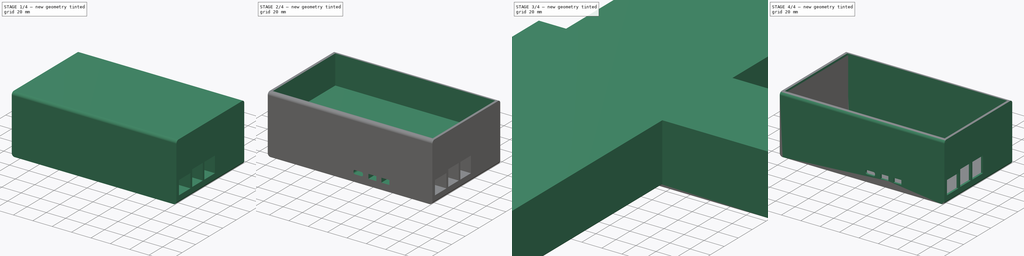
[diagram: build sequence overview — one tinted view per stage of 4, left to right]
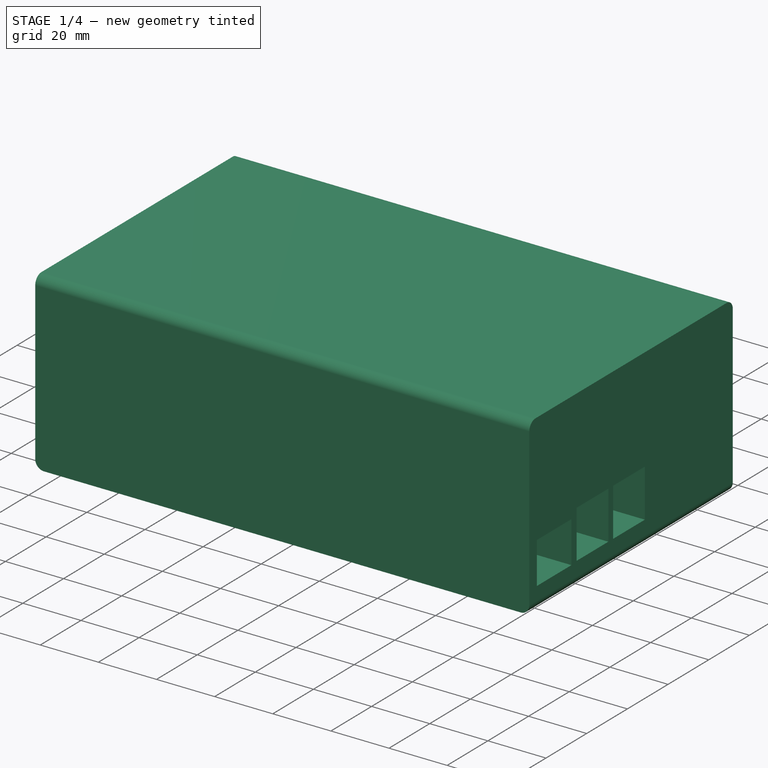
[diagram: stage 1 of 4 — iso view after this stage's code; geometry added in this stage tinted green]
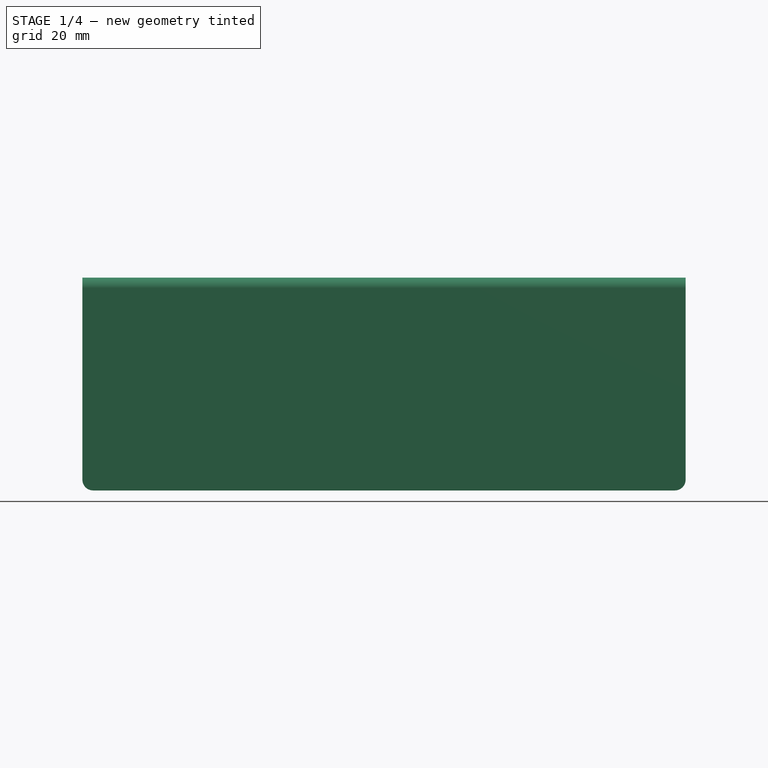
[diagram: stage 1 of 4 — front view after this stage's code; geometry added in this stage tinted green]
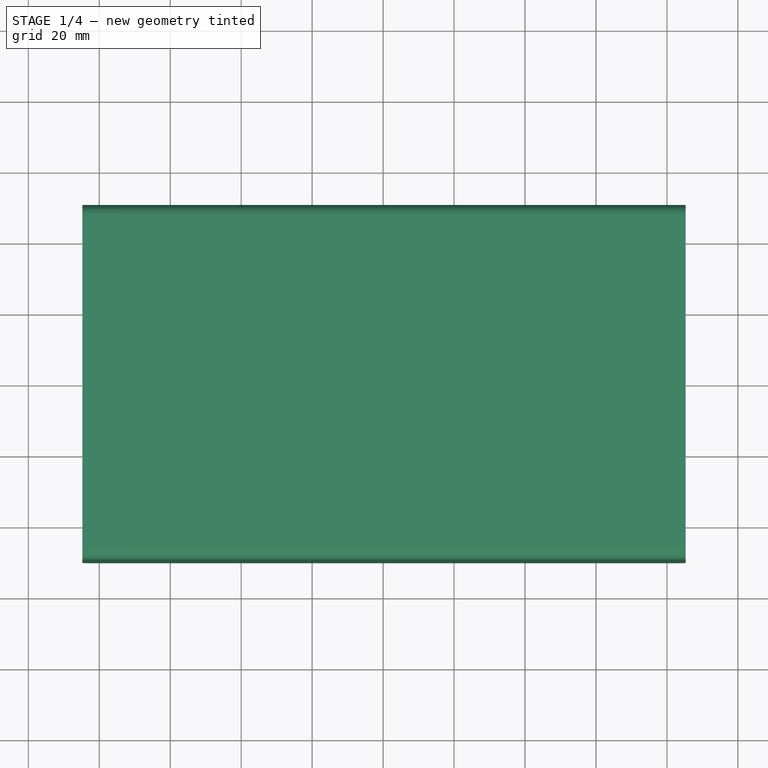
[diagram: stage 1 of 4 — top view after this stage's code; geometry added in this stage tinted green]
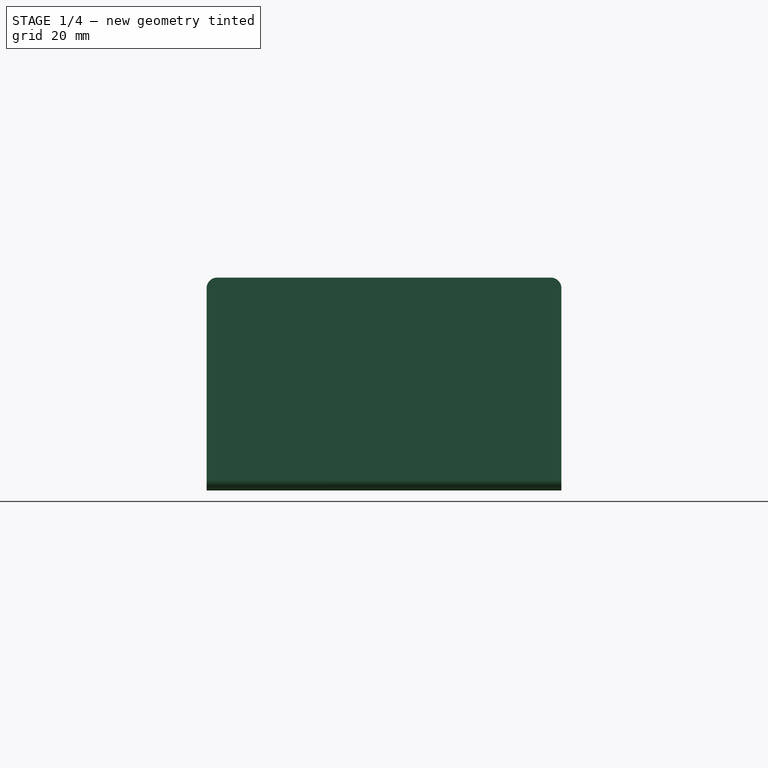
[diagram: stage 1 of 4 — right view after this stage's code; geometry added in this stage tinted green]
FCSTD DOCUMENT  (FreeCAD 0.20R29177 (Git))
Label: Enclosure
License: All rights reserved
LicenseURL: http://en.wikipedia.org/wiki/All_rights_reserved
objects: Part::Feature×18, PartDesign::CoordinateSystem×12, Sketcher::SketchObject×8, PartDesign::SubShapeBinder×6, Part::FeaturePython×6, PartDesign::Pad×4, PartDesign::Pocket×4, App::Link×4, App::DocumentObjectGroup×3, App::Part×3, PartDesign::Body×3, Part::Cut×2, Spreadsheet::Sheet×2, App::FeaturePython×1, PartDesign::Fillet×1
note: 73 computed .brp shape members not serialized (recipe doc carries the construction recipe); baked Part::Feature solids carry a one-line shape summary decoded from their .brp
EXTERNAL_REF file=Top Controls.FCStd obj=Model
EXTERNAL_REF file=../../../.cache/FreeCAD/Cache/FreeCAD_Doc_758b08ec-d01d-4f45-8eb1-2040114cdfba_da39a3_40904 obj=Assembly
EXTERNAL_REF file=Board Standoff.FCStd obj=Assembly
EXTERNAL_REF file=../../../.cache/FreeCAD/Cache/FreeCAD_Doc_88114cf2-53f4-4d60-b915-d9c329f9190e_da39a3_40904 obj=Assembly
EXTERNAL_REF file=../../../.cache/FreeCAD/Cache/FreeCAD_Doc_bedd29ec-8f2d-44d3-9989-91939fc17e47_da39a3_40904 obj=Assembly
EXTERNAL_REF file=../../../.cache/FreeCAD/Cache/FreeCAD_Doc_d5a660e5-ffb9-4f67-9b30-70257670cdda_da39a3_40904 obj=Assembly
EXTERNAL_REF file=../../../.cache/FreeCAD/Cache/FreeCAD_Doc_c0c36c2c-b7f5-4d59-8aca-841648cfa9bd_da39a3_40904 obj=Assembly
EXTERNAL_REF file=../../../.cache/FreeCAD/Cache/FreeCAD_Doc_8f2ab52f-2f3f-4678-b50d-5c2d0dba2e65_da39a3_40904 obj=Assembly
EXTERNAL_REF file=Nut Anchor.FCStd obj=LCS_0
EXTERNAL_REF file=Nut Anchor.FCStd obj=Body

FEATURE [App::DocumentObjectGroup] Parts
FEATURE [PartDesign::CoordinateSystem] LCS_Origin
  AttacherType = Attacher::AttachEngine3D
  MapMode = 2
  Support = -> [X_Axis]
FEATURE [App::DocumentObjectGroup] Constraints
FEATURE [App::FeaturePython] Variables  # WARN: FeaturePython — macro-defined, semantics opaque (R4)
  Type = App::PropertyContainer
  height = 60
  length = 170
  thickness = 2
  width = 100
FEATURE [PartDesign::CoordinateSystem] LCS_0
  AttacherType = Attacher::AttachEngine3D
  MapMode = 2
  Support = -> [X_Axis001]
FEATURE [Part::Feature] Part__Feature  label="PCB_for REF 060923"
  Placement = pos=(0,0,0) rot=(0,1,0;3.14159rad)
  shape: bbox 85 x 5.1 x 56 mm, 198 faces, 28 solids (baked)
FEATURE [Part::Feature] Part__Feature001  label="GPIO Header for REF"
  Placement = pos=(-10,1.5,-24.5) rot=(0,0,1;0rad)
  shape: bbox 50.8 x 10.4 x 5 mm, 250 faces (baked)
FEATURE [Part::Feature] Part__Feature002  label="Micro HDMI for REF"
  Placement = pos=(-16.7047,1.65,21.1346) rot=(-1,0,0;1.5708rad)
  shape: bbox 7.2 x 3.6 x 8.529 mm, 62 faces (baked)
FEATURE [Part::Feature] Part__Feature003  label="Micro HDMI for REF001"
  Placement = pos=(-3.30473,1.65,21.1346) rot=(-1,0,0;1.5708rad)
  shape: bbox 7.2 x 3.6 x 8.529 mm, 62 faces (baked)
FEATURE [Part::Feature] Part__Feature004  label="SD CARD for REF"
  Placement = pos=(0.611344,14.58,0.08) rot=(0,-1,0;1.5708rad)
  shape: bbox 15.43 x 1.632 x 11.98 mm, 492 faces, 2 solids (baked)
FEATURE [Part::Feature] Part__Feature005  label="USB-C for REF"
  Placement = pos=(-31.3,3.22,27.3) rot=(0,0,1;3.14159rad)
  shape: bbox 8.74 x 4.86 x 7.3 mm, 235 faces (baked)
FEATURE [Part::Feature] Part__Feature006  label="RJ45 for REF"
  Placement = pos=(34.875,2.1,17.8) rot=(-1,0,0;1.5708rad)
  shape: bbox 21.25 x 13.3 x 16 mm, 15 faces (baked)
FEATURE [Part::Feature] Part__Feature007  label="USB for REF"
  Placement = pos=(0.896344,15,-0.05) rot=(0,-1,0;1.5708rad)
  shape: bbox 17.57 x 19.81 x 15.8 mm, 610 faces (baked)
FEATURE [Part::Feature] Part__Feature008  label="USB for REF001"
  Placement = pos=(0.896344,15,-18) rot=(0,-1,0;1.5708rad)
  shape: bbox 17.57 x 19.81 x 15.8 mm, 610 faces (baked)
FEATURE [Part::Feature] Part__Feature009  label="PCIe for REF"
  Placement = pos=(-39.5,3.575,-2.01015) rot=(0.57735,0.57735,0.57735;4.18879rad)
  shape: bbox 3.4 x 4.1 x 10.5 mm, 308 faces (baked)
FEATURE [Part::Feature] Part__Feature010  label="CAM-DISP for REF"
  Placement = pos=(5.95,1.5,19.55) rot=(0,-1,0;1.5708rad)
  shape: bbox 2.95 x 4.1 x 15.5 mm, 10 faces (baked)
FEATURE [Part::Feature] Part__Feature011  label="CAM-DISP for REF001"
  Placement = pos=(12.15,1.5,19.55) rot=(0,-1,0;1.5708rad)
  shape: bbox 2.95 x 4.1 x 15.5 mm, 10 faces (baked)
FEATURE [Part::Feature] Part__Feature012  label="LED for REF"
  Placement = pos=(-40.87,2,14.7) rot=(0.57735,-0.57735,0.57735;2.0944rad)
  shape: bbox 1.48 x 1 x 3.2 mm, 12 faces (baked)
FEATURE [Part::Feature] Part__Feature013  label="BAT Header for REF"
  Placement = pos=(-23.5,1.5,23.25) rot=(0,0,1;0rad)
  shape: bbox 4 x 4.4 x 2.9 mm, 6 faces (baked)
FEATURE [Part::Feature] Part__Feature014  label="PoE Header for REF"
  Placement = pos=(19,1.5,18.5) rot=(0,0,1;0rad)
  shape: bbox 5 x 8.5 x 5 mm, 18 faces (baked)
FEATURE [Part::Feature] Part__Feature015  label="FAN Header for REF"
  Placement = pos=(24.25,1.5,-24) rot=(0,-1,0;1.5708rad)
  shape: bbox 3 x 4.45 x 6 mm, 6 faces (baked)
FEATURE [Part::Feature] Part__Feature016  label="SWITCH for REF"
  Placement = pos=(-40.825,3.15,9.6) rot=(0,-1,0;1.5708rad)
  shape: bbox 3.4 x 3.3 x 4.5 mm, 14 faces, 2 solids (baked)
FEATURE [Part::Feature] Part__Feature017  label="UART for REF"
  Placement = pos=(-10.15,1.5,24.1) rot=(0,0,1;0rad)
  shape: bbox 5.3 x 4.4 x 3.2 mm, 6 faces (baked)
FEATURE [App::Part] RP_004882_DD___Pi_5_Mechanical_Reference_3D_model_Iss1  label="RP-004882-DD - Pi 5 Mechanical Reference 3D model Iss1"
  Group = -> [Part__Feature,Part__Feature001,Part__Feature002,Part__Feature003,Part__Feature004,Part__Feature005,Part__Feature006,Part__Feature007,Part__Feature008,Part__Feature009,Part__Feature010,Part__Feature011,Part__Feature012,Part__Feature013,Part__Feature014,Part__Feature015,Part__Feature016,Part__Feature017]
  Origin = -> Origin002
  Placement = pos=(0,0,6) rot=(1,0,0;1.5708rad)
FEATURE [PartDesign::SubShapeBinder] Binder  label="Main board"
  BindCopyOnChange = 0
  BindMode = 0
  ClaimChildren = false
  Context = -> Model [Case.Body.Binder.]
  Fuse = false
  MakeFace = true
  OffsetFill = false
  OffsetIntersection = false
  OffsetJoinType = 0
  OffsetOpenResult = false
  PartialLoad = false
  Relative = true
  Support = -> [RP_004882_DD___Pi_5_Mechanical_Reference_3D_model_Iss1[Part__Feature.]]
  _Version = 2
FEATURE [Sketcher::SketchObject] Sketch
  FullyConstrained = true
  MapMode = 5
  Support = -> [XY_Plane003]
  expr: Constraints[11] = Variables.width
  expr: Constraints[8] = Variables.length
  sketch-geometry (4):
    g0: LineSegment StartX=-124.75 StartY=70 StartZ=0 EndX=45.25 EndY=70 EndZ=0
    g1: LineSegment StartX=45.25 StartY=70 StartZ=0 EndX=45.25 EndY=-30 EndZ=0
    g2: LineSegment StartX=45.25 StartY=-30 StartZ=0 EndX=-124.75 EndY=-30 EndZ=0
    g3: LineSegment StartX=-124.75 StartY=-30 StartZ=0 EndX=-124.75 EndY=70 EndZ=0
  constraints (12):
    c: Coincident(g0,g1)
    c: Coincident(g1,g2)
    c: Coincident(g2,g3)
    c: Coincident(g3,g0)
    c: Horizontal(g0)
    c: Horizontal(g2)
    c: Vertical(g1)
    c: Vertical(g3)
    c: DistanceX(g0,g0) = 170
    c: DistanceY(g1,g-1) = 30
    c: DistanceX(g-1,g1) = 45.25
    c: DistanceY(g1,g0) = 100
FEATURE [PartDesign::Pad] Pad  label="Outer Case"
  Direction = (0,0,1)
  Length = 60
  Length2 = 10
  Profile = -> Sketch
  ReferenceAxis = -> Sketch [N_Axis]
  Type = 0
  expr: Length = Variables.height
FEATURE [PartDesign::Fillet] Fillet
  Base = -> Pad [Edge6,Edge10,Edge4,Edge11]
  BaseFeature = -> Pad
  Radius = 3
  SupportTransform = false
  UseAllEdges = false
FEATURE [PartDesign::SubShapeBinder] Binder001  label="Rpi Ports"
  BindCopyOnChange = 0
  BindMode = 0
  ClaimChildren = false
  Context = -> Model [Case.Body.Binder001.]
  Fuse = false
  MakeFace = true
  OffsetFill = false
  OffsetIntersection = false
  OffsetJoinType = 0
  OffsetOpenResult = false
  PartialLoad = false
  Relative = true
  Support = -> [RP_004882_DD___Pi_5_Mechanical_Reference_3D_model_Iss1[Part__Feature005.Edge107,Part__Feature005.Edge105,Part__Feature005.Edge111,Part__Feature005.Edge109,Part__Feature005.Edge108,Part__Feature005.Edge110,Part__Feature005.Edge104,Part__Feature005.Edge103]]
  _Version = 2
FEATURE [Sketcher::SketchObject] Sketch001
  ExternalGeometry = -> [Binder001]
  FullyConstrained = true
  MapMode = 5
  Placement = pos=(0,0,0) rot=(0.57735,0.57735,0.57735;2.0944rad)
  Support = -> [YZ_Plane003]
  sketch-geometry (12):
    g0: LineSegment StartX=-26.3 StartY=21.9 StartZ=0 EndX=-9.3 EndY=21.9 EndZ=0
    g1: LineSegment StartX=-9.3 StartY=21.9 StartZ=0 EndX=-9.3 EndY=7.6 EndZ=0
    g2: LineSegment StartX=-9.3 StartY=7.6 StartZ=0 EndX=-26.3 EndY=7.6 EndZ=0
    g3: LineSegment StartX=-26.3 StartY=7.6 StartZ=0 EndX=-26.3 EndY=21.9 EndZ=0
    g4: LineSegment StartX=-6.75 StartY=7.95 StartZ=0 EndX=8.85 EndY=7.95 EndZ=0
    g5: LineSegment StartX=8.85 StartY=7.95 StartZ=0 EndX=8.85 EndY=24.45 EndZ=0
    g6: LineSegment StartX=8.85 StartY=24.45 StartZ=0 EndX=-6.75 EndY=24.45 EndZ=0
    g7: LineSegment StartX=-6.75 StartY=24.45 StartZ=0 EndX=-6.75 EndY=7.95 EndZ=0
    g8: LineSegment StartX=11.2 StartY=24.45 StartZ=0 EndX=26.8 EndY=24.45 EndZ=0
    g9: LineSegment StartX=26.8 StartY=24.45 StartZ=0 EndX=26.8 EndY=7.95 EndZ=0
    g10: LineSegment StartX=26.8 StartY=7.95 StartZ=0 EndX=11.2 EndY=7.95 EndZ=0
    g11: LineSegment StartX=11.2 StartY=7.95 StartZ=0 EndX=11.2 EndY=24.45 EndZ=0
  constraints (36):
    c: Coincident(g0,g1)
    c: Coincident(g1,g2)
    c: Coincident(g2,g3)
    c: Coincident(g3,g0)
    c: Horizontal(g0)
    c: Horizontal(g2)
    c: Vertical(g1)
    c: Vertical(g3)
    c: Coincident(g4,g5)
    c: Coincident(g5,g6)
    c: Coincident(g6,g7)
    c: Coincident(g7,g4)
    c: Horizontal(g4)
    c: Horizontal(g6)
    c: Vertical(g5)
    c: Vertical(g7)
    c: Coincident(g8,g9)
    c: Coincident(g9,g10)
    c: Coincident(g10,g11)
    c: Coincident(g11,g8)
    c: Horizontal(g8)
    c: Horizontal(g10)
    c: Vertical(g9)
    c: Vertical(g11)
    c: DistanceX(g-6,g1) = 0.5
    c: DistanceY(g-4,g0) = 0.5
    c: DistanceX(g2,g-5) = 0.5
    c: DistanceY(g1,g-6) = 0.5
    c: DistanceY(g4,g-9) = 0.5
    c: DistanceY(g-8,g6) = 0.5
    c: DistanceX(g-10,g5) = 0.5
    c: DistanceX(g6,g-7) = 0.5
    c: DistanceX(g8,g-11) = 0.5
    c: DistanceY(g-12,g8) = 0.5
    c: DistanceX(g-14,g9) = 0.5
    c: DistanceY(g10,g-13) = 0.5
FEATURE [PartDesign::Pocket] Pocket  label="Right Port Holes"
  BaseFeature = -> Fillet
  Direction = (-1,2e-16,-3e-16)
  Length = 0
  Length2 = 5
  Offset = 2
  Profile = -> Sketch001
  ReferenceAxis = -> Sketch001 [N_Axis]
  Reversed = true
  Type = 1
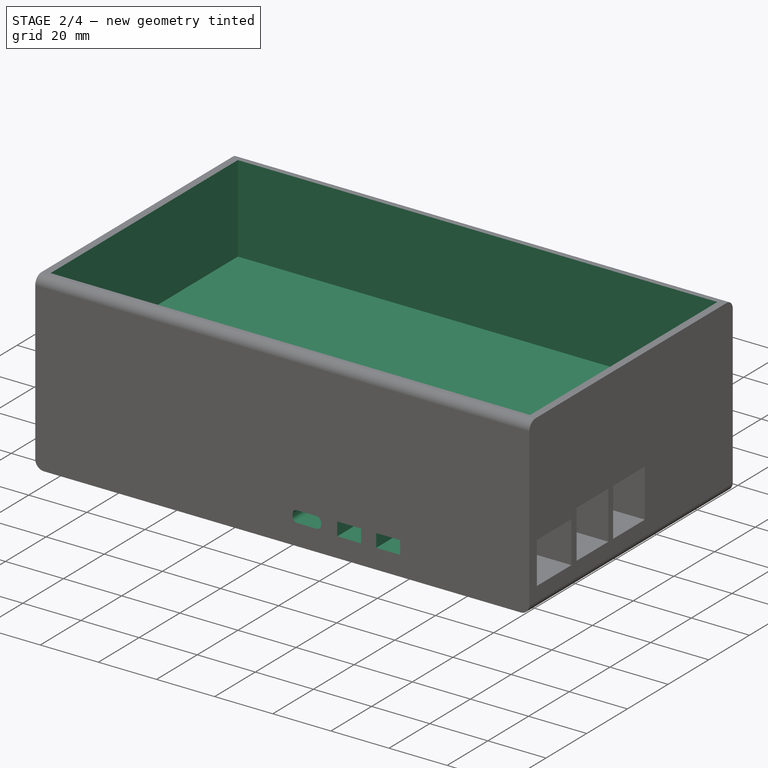
[diagram: stage 2 of 4 — iso view after this stage's code; geometry added in this stage tinted green]
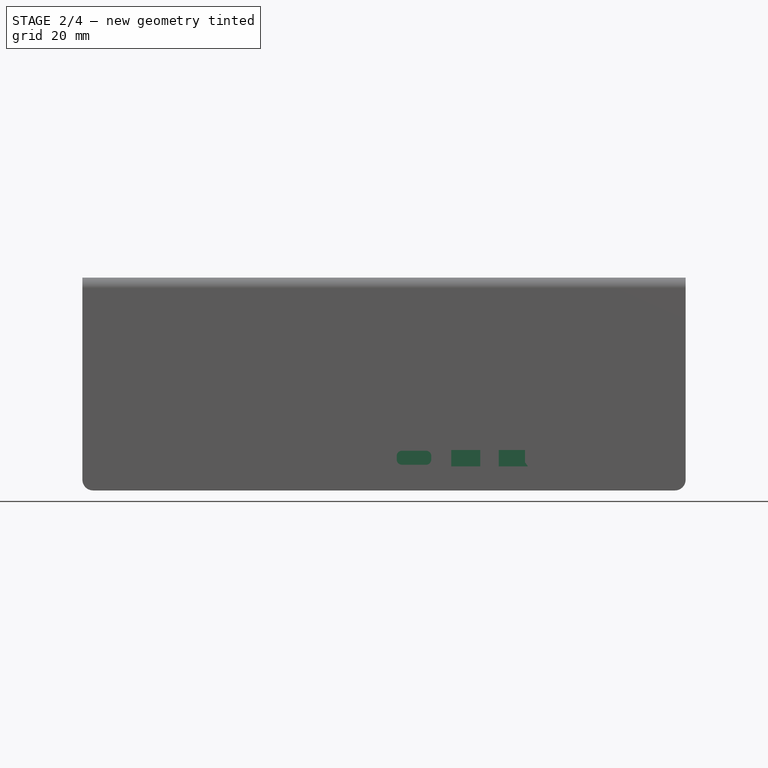
[diagram: stage 2 of 4 — front view after this stage's code; geometry added in this stage tinted green]
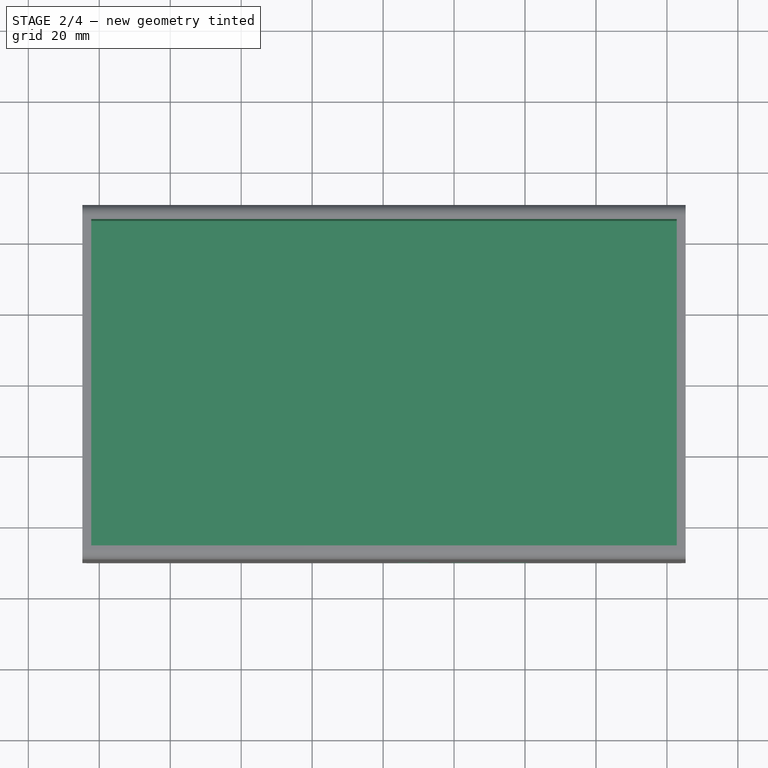
[diagram: stage 2 of 4 — top view after this stage's code; geometry added in this stage tinted green]
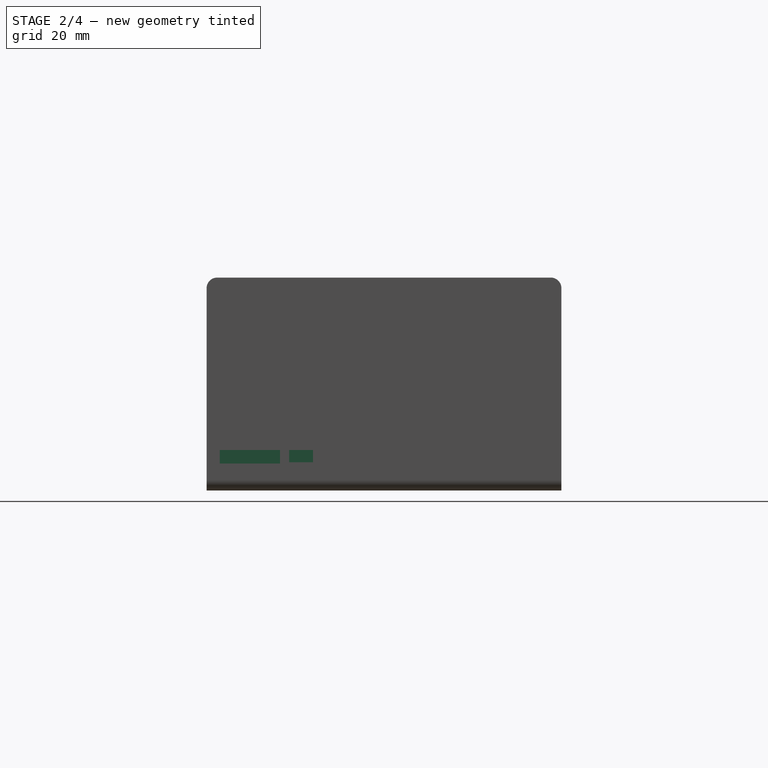
[diagram: stage 2 of 4 — right view after this stage's code; geometry added in this stage tinted green]
FEATURE [Sketcher::SketchObject] Sketch002
  ExternalGeometry = -> [Binder001]
  FullyConstrained = true
  MapMode = 5
  Placement = pos=(0,0,0) rot=(1,0,0;1.5708rad)
  Support = -> [XZ_Plane003]
  sketch-geometry (18):
    g0: ArcOfCircle CenterX=-34.67 CenterY=9.7 CenterZ=0 NormalX=0 NormalY=0 NormalZ=1 AngleXU=0 Radius=1.5 StartAngle=1.5708 EndAngle=3.14159
    g1: LineSegment StartX=-34.67 StartY=11.2 StartZ=0 EndX=-27.93 EndY=11.2 EndZ=0
    g2: ArcOfCircle CenterX=-27.93 CenterY=9.7 CenterZ=0 NormalX=0 NormalY=0 NormalZ=1 AngleXU=0 Radius=1.5 StartAngle=4e-16 EndAngle=1.5708
    g3: LineSegment StartX=-26.43 StartY=9.7 StartZ=0 EndX=-26.43 EndY=8.74 EndZ=0
    g4: ArcOfCircle CenterX=-27.93 CenterY=8.74 CenterZ=0 NormalX=0 NormalY=0 NormalZ=1 AngleXU=0 Radius=1.5 StartAngle=4.71239 EndAngle=6.28319
    g5: LineSegment StartX=-27.93 StartY=7.24 StartZ=0 EndX=-34.67 EndY=7.24 EndZ=0
    g6: ArcOfCircle CenterX=-34.67 CenterY=8.74 CenterZ=0 NormalX=0 NormalY=0 NormalZ=1 AngleXU=0 Radius=1.5 StartAngle=3.14159 EndAngle=4.71239
    g7: LineSegment StartX=-36.17 StartY=8.74 StartZ=0 EndX=-36.17 EndY=9.7 EndZ=0
    g8: GeomPoint X=-36.17 Y=11.2 Z=0
    g9: GeomPoint X=-26.43 Y=7.24 Z=0
    g10: LineSegment StartX=-20.8047 StartY=11.4 StartZ=0 EndX=-12.6047 EndY=11.4 EndZ=0
    g11: LineSegment StartX=-12.6047 StartY=11.4 StartZ=0 EndX=-12.6047 EndY=6.8 EndZ=0
    g12: LineSegment StartX=-12.6047 StartY=6.8 StartZ=0 EndX=-20.8047 EndY=6.8 EndZ=0
    g13: LineSegment StartX=-20.8047 StartY=6.8 StartZ=0 EndX=-20.8047 EndY=11.4 EndZ=0
    g14: LineSegment StartX=-7.40473 StartY=11.4 StartZ=0 EndX=0.795267 EndY=11.4 EndZ=0
    g15: LineSegment StartX=0.795267 StartY=11.4 StartZ=0 EndX=0.795267 EndY=6.8 EndZ=0
    g16: LineSegment StartX=0.795267 StartY=6.8 StartZ=0 EndX=-7.40473 EndY=6.8 EndZ=0
    g17: LineSegment StartX=-7.40473 StartY=6.8 StartZ=0 EndX=-7.40473 EndY=11.4 EndZ=0
  constraints (48):
    c: Tangent(g0,g1) = 1.5708
    c: Tangent(g1,g2) = 1.5708
    c: Tangent(g2,g3) = 1.5708
    c: Tangent(g3,g4) = 1.5708
    c: Tangent(g4,g5) = 1.5708
    c: Tangent(g5,g6) = 1.5708
    c: Tangent(g6,g7) = 1.5708
    c: Tangent(g7,g0) = 1.5708
    c: Horizontal(g1)
    c: Horizontal(g5)
    c: Vertical(g3)
    c: Vertical(g7)
    c: Equal(g0,g2)
    c: Equal(g2,g4)
    c: Equal(g4,g6)
    c: PointOnObject(g8,g1)
    c: PointOnObject(g8,g7)
    c: PointOnObject(g9,g3)
    c: PointOnObject(g9,g5)
    c: DistanceY(g-10,g1) = 0.5
    c: DistanceY(g4,g-8) = 0.5
    c: DistanceX(g-9,g3) = 0.5
    c: DistanceX(g6,g-6) = 0.5
    c: Vertical(g6,g-6)
    c: Coincident(g10,g11)
    c: Coincident(g11,g12)
    c: Coincident(g12,g13)
    c: Coincident(g13,g10)
    c: Horizontal(g10)
    c: Horizontal(g12)
    c: Vertical(g11)
    c: Vertical(g13)
    c: Coincident(g14,g15)
    c: Coincident(g15,g16)
    c: Coincident(g16,g17)
    c: Coincident(g17,g14)
    c: Horizontal(g14)
    c: Horizontal(g16)
    c: Vertical(g15)
    c: Vertical(g17)
    c: DistanceY(g-12,g10) = 0.5
    c: DistanceX(g-14,g10) = 0.5
    c: DistanceY(g11,g-13) = 0.5
    c: DistanceX(g12,g-11) = 0.5
    c: DistanceX(g14,g-15) = 0.5
    c: DistanceY(g-16,g14) = 0.5
    c: DistanceX(g-18,g15) = 0.5
    c: DistanceY(g16,g-17) = 0.5
FEATURE [PartDesign::Pocket] Pocket001  label="Front Port Holes"
  BaseFeature = -> Pocket
  Direction = (0,1,2e-16)
  Length = 5
  Length2 = 5
  Profile = -> Sketch002
  ReferenceAxis = -> Sketch002 [N_Axis]
  Reversed = true
  Type = 1
FEATURE [Sketcher::SketchObject] Sketch006
  AttachmentOffset = pos=(0,0,30) rot=(0,0,1;0rad)
  ExternalGeometry = -> [Pad]
  FullyConstrained = true
  MapMode = 5
  Placement = pos=(0,0,30) rot=(0,0,1;0rad)
  Support = -> [XY_Plane003]
  sketch-geometry (5):
    g0: GeomPoint X=-39.75 Y=20 Z=0
    g1: LineSegment StartX=-122.25 StartY=66 StartZ=0 EndX=42.75 EndY=66 EndZ=0
    g2: LineSegment StartX=42.75 StartY=66 StartZ=0 EndX=42.75 EndY=-26 EndZ=0
    g3: LineSegment StartX=42.75 StartY=-26 StartZ=0 EndX=-122.25 EndY=-26 EndZ=0
    g4: LineSegment StartX=-122.25 StartY=-26 StartZ=0 EndX=-122.25 EndY=66 EndZ=0
  constraints (12):
    c: Symmetric(g-4,g-6,g0)
    c: Coincident(g1,g2)
    c: Coincident(g2,g3)
    c: Coincident(g3,g4)
    c: Coincident(g4,g1)
    c: Horizontal(g1)
    c: Horizontal(g3)
    c: Vertical(g2)
    c: Vertical(g4)
    c: DistanceX(g1,g1) = 165
    c: DistanceY(g2,g2) = 92
    c: Symmetric(g1,g2,g0)
FEATURE [PartDesign::Pocket] Pocket003  label="Top Holes"
  BaseFeature = -> Pocket001
  Direction = (0,0,-1)
  Length = 500
  Length2 = 5
  Profile = -> Sketch006
  ReferenceAxis = -> Sketch006 [N_Axis]
  Reversed = true
  Type = 0
FEATURE [App::Link] Top_Controls
  AttachedBy = #LCS_Origin
  AttachedTo = Parent Assembly#Case_LCS_Top
  AttachmentOffset = pos=(0,0,-2) rot=(0,0,-1;1.5708rad)
  LinkPlacement = pos=(-39.75,20,58) rot=(0,0,1;0rad)
  LinkedObject = -> <external Top Controls.FCStd>#Model
  Placement = pos=(-39.75,20,58) rot=(0,0,1;0rad)
  SolverId = Asm4EE
  expr: .Placement.Base.z = Variables.height - 2
FEATURE [PartDesign::SubShapeBinder] Binder004  label="Pi Mounting Holes"
  BindCopyOnChange = 0
  BindMode = 0
  ClaimChildren = false
  Context = -> Model [Binder004.]
  Fuse = false
  MakeFace = true
  OffsetFill = false
  OffsetIntersection = false
  OffsetJoinType = 0
  OffsetOpenResult = false
  PartialLoad = false
  Refine = true
  Relative = true
  Support = -> [RP_004882_DD___Pi_5_Mechanical_Reference_3D_model_Iss1[Part__Feature.Edge325,Part__Feature.Edge333,Part__Feature.Edge304,Part__Feature.Edge303,Part__Feature.Edge312,Part__Feature.Edge311,Part__Feature.Edge308,Part__Feature.Edge307]]
  _Version = 2
FEATURE [PartDesign::CoordinateSystem] LCS_PI_FL_Standoff
  AttacherType = Attacher::AttachEngine3D
  MapMode = 45
  Placement = pos=(-39,-24.5,6.1) rot=(0,0,1;0rad)
  Support = -> [Binder004]
FEATURE [PartDesign::CoordinateSystem] LCS_PI_FR_Standoff
  AttacherType = Attacher::AttachEngine3D
  MapMode = 45
  Placement = pos=(19,-24.5,6.1) rot=(0,0,1;0rad)
  Support = -> [Binder004]
FEATURE [PartDesign::CoordinateSystem] LCS_PI_RL_Standoff  label="LCS_PI_RR_Standoff"
  AttacherType = Attacher::AttachEngine3D
  MapMode = 45
  Placement = pos=(19,24.5,6.1) rot=(0,0,1;0rad)
  Support = -> [Binder004]
FEATURE [PartDesign::CoordinateSystem] LCS_PI_RR_Standoff  label="LCS_PI_RL_Standoff"
  AttacherType = Attacher::AttachEngine3D
  MapMode = 45
  Placement = pos=(-39,24.5,6.1) rot=(0,0,1;0rad)
  Support = -> [Binder004]
FEATURE [Part::FeaturePython] Board_Standoff_PI_FL  # link proxy (typed FeaturePython)
  AttachedBy = #LCS_Top001
  AttachedTo = Parent Assembly#LCS_PI_FL_Standoff
  LinkedObject = -> <external ../../../.cache/FreeCAD/Cache/FreeCAD_Doc_758b08ec-d01d-4f45-8eb1-2040114cdfba_da39a3_40904>#Assembly
  Placement = pos=(-39,-24.5,0.1) rot=(0,0,-1;1.5708rad)
  SolverId = Asm4EE
  SourceObject = -> <external Board Standoff.FCStd>#Assembly
  Type = Asm4::VariantLink
  diameter = 6
  height = 6
  hole_diameter = 2.5
  expr: Placement = LCS_PI_FL_Standoff.Placement * AttachmentOffset * varTmpDoc_5#LCS_Top001.Placement ^ -1
FEATURE [Part::FeaturePython] Board_Standoff_PI_FR  # link proxy (typed FeaturePython)
  AttachedBy = #LCS_Top001
  AttachedTo = Parent Assembly#LCS_PI_FR_Standoff
  LinkedObject = -> <external ../../../.cache/FreeCAD/Cache/FreeCAD_Doc_88114cf2-53f4-4d60-b915-d9c329f9190e_da39a3_40904>#Assembly
  Placement = pos=(19,-24.5,0.1) rot=(0,0,-1;1.5708rad)
  SolverId = Asm4EE
  SourceObject = -> <external Board Standoff.FCStd>#Assembly
  Type = Asm4::VariantLink
  diameter = 6
  height = 6
  hole_diameter = 2.5
  expr: Placement = LCS_PI_FR_Standoff.Placement * AttachmentOffset * varTmpDoc_6#LCS_Top001.Placement ^ -1
FEATURE [Part::FeaturePython] Board_Standoff_PI_RL  # link proxy (typed FeaturePython)
  AttachedBy = #LCS_Top001
  AttachedTo = Parent Assembly#LCS_PI_RR_Standoff
  LinkedObject = -> <external ../../../.cache/FreeCAD/Cache/FreeCAD_Doc_bedd29ec-8f2d-44d3-9989-91939fc17e47_da39a3_40904>#Assembly
  Placement = pos=(-39,24.5,0.1) rot=(0,0,-1;1.5708rad)
  SolverId = Asm4EE
  SourceObject = -> <external Board Standoff.FCStd>#Assembly
  Type = Asm4::VariantLink
  diameter = 6
  height = 6
  hole_diameter = 2.5
  expr: Placement = LCS_PI_RR_Standoff.Placement * AttachmentOffset * varTmpDoc_7#LCS_Top001.Placement ^ -1
FEATURE [Part::FeaturePython] Board_Standoff_PI_RR  # link proxy (typed FeaturePython)
  AttachedBy = #LCS_Top001
  AttachedTo = Parent Assembly#LCS_PI_RL_Standoff
  LinkedObject = -> <external ../../../.cache/FreeCAD/Cache/FreeCAD_Doc_d5a660e5-ffb9-4f67-9b30-70257670cdda_da39a3_40904>#Assembly
  Placement = pos=(19,24.5,0.1) rot=(0,0,-1;1.5708rad)
  SolverId = Asm4EE
  SourceObject = -> <external Board Standoff.FCStd>#Assembly
  Type = Asm4::VariantLink
  diameter = 6
  height = 6
  hole_diameter = 2.5
  expr: Placement = LCS_PI_RL_Standoff.Placement * AttachmentOffset * varTmpDoc_8#LCS_Top001.Placement ^ -1
FEATURE [Sketcher::SketchObject] Sketch007
  ExternalGeometry = -> [Binder,Fillet]
  FullyConstrained = true
  MapMode = 5
  Support = -> [XY_Plane003]
  expr: Constraints[34] = 8.199999999999999 / 2 + 2
  sketch-geometry (16):
    g0: Circle CenterX=-39 CenterY=24.5 CenterZ=0 NormalX=0 NormalY=0 NormalZ=1 AngleXU=0 Radius=2.2
    g1: Circle CenterX=19 CenterY=24.5 CenterZ=0 NormalX=0 NormalY=0 NormalZ=1 AngleXU=0 Radius=2.2
    g2: Circle CenterX=-39 CenterY=-24.5 CenterZ=0 NormalX=0 NormalY=0 NormalZ=1 AngleXU=0 Radius=2.2
    g3: Circle CenterX=19 CenterY=-24.5 CenterZ=0 NormalX=0 NormalY=0 NormalZ=1 AngleXU=0 Radius=2.2
    g4: Circle CenterX=-54 CenterY=24.5 CenterZ=0 NormalX=0 NormalY=0 NormalZ=1 AngleXU=0 Radius=2.2
    g5: Circle CenterX=-54 CenterY=-24.5 CenterZ=0 NormalX=0 NormalY=0 NormalZ=1 AngleXU=0 Radius=2.2
    g6: Circle CenterX=-112 CenterY=24.5 CenterZ=0 NormalX=0 NormalY=0 NormalZ=1 AngleXU=0 Radius=2.2
    g7: Circle CenterX=-112 CenterY=-24.5 CenterZ=0 NormalX=0 NormalY=0 NormalZ=1 AngleXU=0 Radius=2.2
    g8: LineSegment StartX=-112 StartY=24.5 StartZ=0 EndX=-54 EndY=24.5 EndZ=0
    g9: LineSegment StartX=-54 StartY=24.5 StartZ=0 EndX=-54 EndY=-24.5 EndZ=0
    g10: LineSegment StartX=-54 StartY=-24.5 StartZ=0 EndX=-112 EndY=-24.5 EndZ=0
    g11: LineSegment StartX=-112 StartY=-24.5 StartZ=0 EndX=-112 EndY=24.5 EndZ=0
    g12: Circle CenterX=-112 CenterY=18.5 CenterZ=0 NormalX=0 NormalY=0 NormalZ=1 AngleXU=0 Radius=2.2
    g13: Circle CenterX=-116.75 CenterY=-23.9 CenterZ=0 NormalX=0 NormalY=0 NormalZ=1 AngleXU=0 Radius=1.75
    g14: Circle CenterX=-116.75 CenterY=63.9 CenterZ=0 NormalX=0 NormalY=0 NormalZ=1 AngleXU=0 Radius=1.75
    g15: Circle CenterX=37.25 CenterY=63.9 CenterZ=0 NormalX=0 NormalY=0 NormalZ=1 AngleXU=0 Radius=1.75
  constraints (40):
    c: Coincident(g0,g-4)
    c: Coincident(g1,g-10)
    c: Coincident(g2,g-6)
    c: Coincident(g3,g-8)
    c: Coincident(g8,g9)
    c: Coincident(g9,g10)
    c: Coincident(g10,g11)
    c: Coincident(g11,g8)
    c: Horizontal(g8)
    c: Horizontal(g10)
    c: Vertical(g9)
    c: Vertical(g11)
    c: Coincident(g8,g6)
    c: Coincident(g9,g5)
    c: Coincident(g7,g10)
    c: Coincident(g4,g8)
    c: Horizontal(g4,g0)
    c: DistanceX(g4,g0) = 15
    c: Horizontal(g5,g2)
    c: Equal(g4,g6)
    c: Equal(g6,g7)
    c: Equal(g7,g5)
    c: Equal(g5,g2)
    c: PointOnObject(g12,g11)
    c: DistanceY(g12,g6) = 6
    c: Diameter(g0) = 4.4
    c: Equal(g1,g0)
    c: Equal(g0,g2)
    c: Equal(g2,g3)
    c: Equal(g3,g12)
    c: DistanceX(g8,g8) = 58
    c: Equal(g13,g14)
    c: Equal(g14,g15)
    c: Diameter(g14) = 3.5
    c: DistanceY(g14,g-13) = 6.1
    c: DistanceY(g-14,g13) = 6.1
    c: DistanceX(g-13,g14) = 5
    c: Vertical(g14,g13)
    c: Horizontal(g14,g15)
    c: DistanceX(g15,g-12) = 5
FEATURE [PartDesign::Pocket] Pocket004  label="Bottom Holes"
  BaseFeature = -> Pocket003
  Direction = (0,0,-1)
  Length = 5
  Length2 = 5
  Profile = -> Sketch007
  ReferenceAxis = -> Sketch007 [N_Axis]
  Refine = true
  Reversed = true
  Type = 0
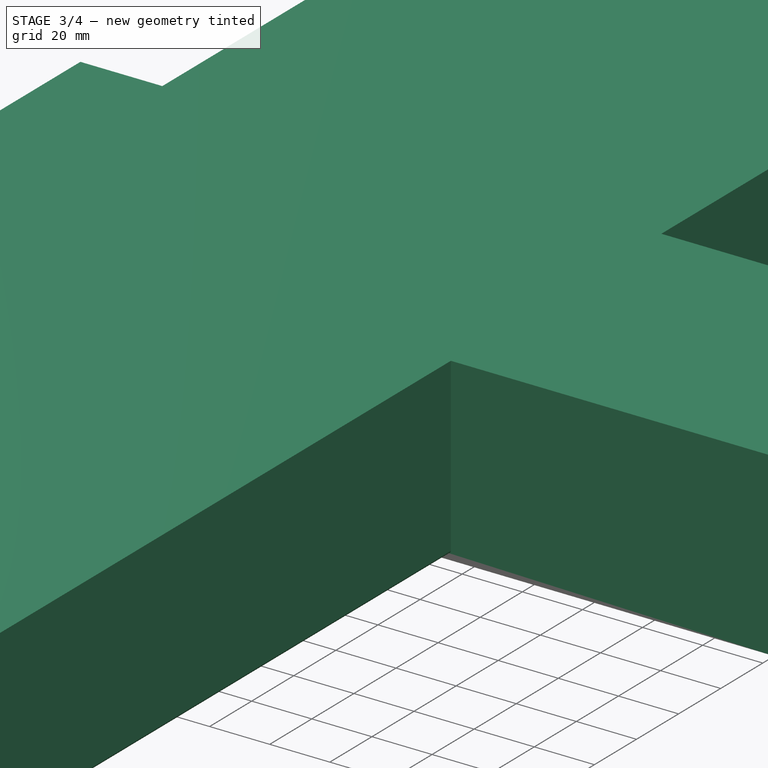
[diagram: stage 3 of 4 — iso view after this stage's code; geometry added in this stage tinted green]
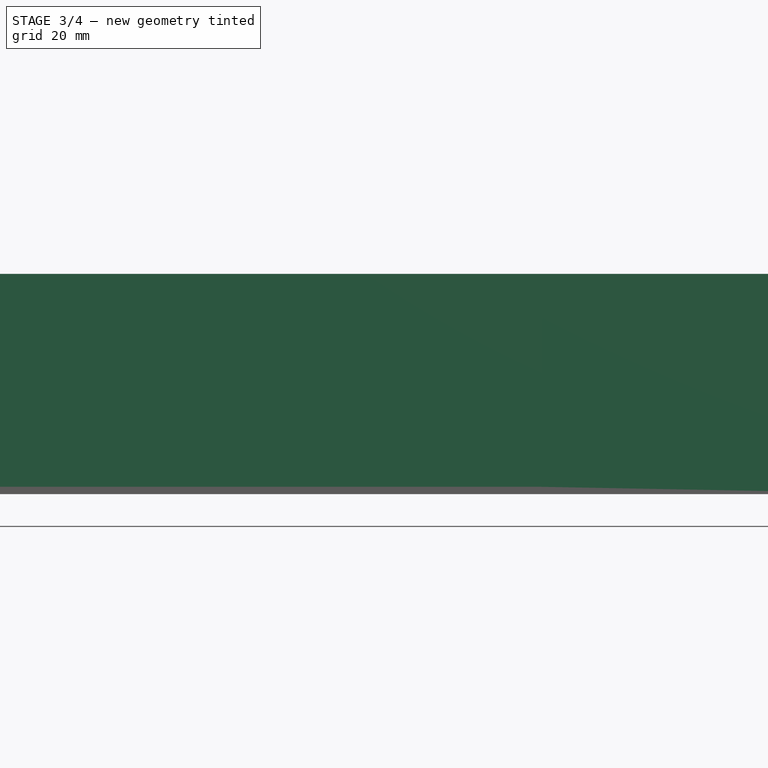
[diagram: stage 3 of 4 — front view after this stage's code; geometry added in this stage tinted green]
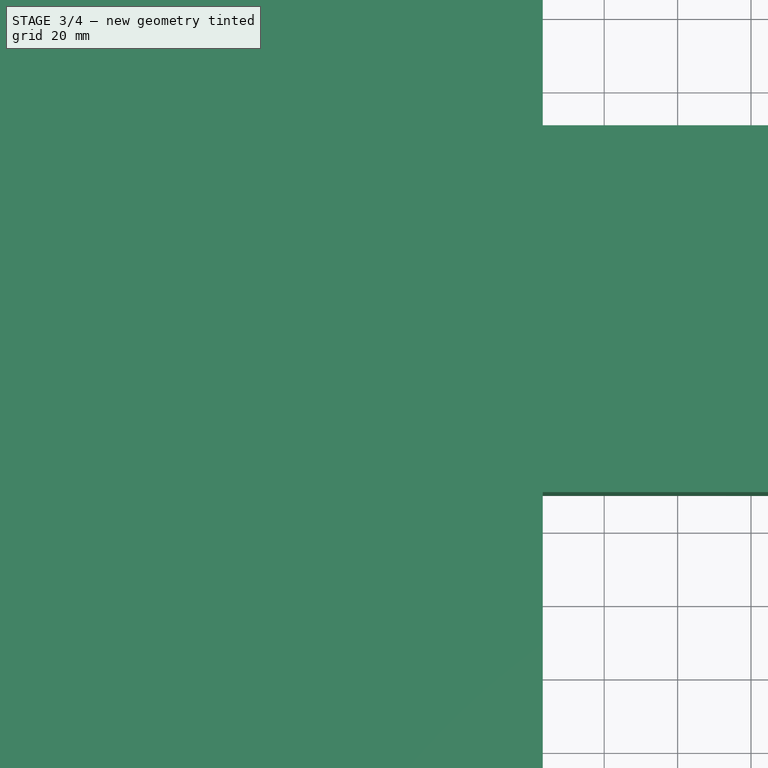
[diagram: stage 3 of 4 — top view after this stage's code; geometry added in this stage tinted green]
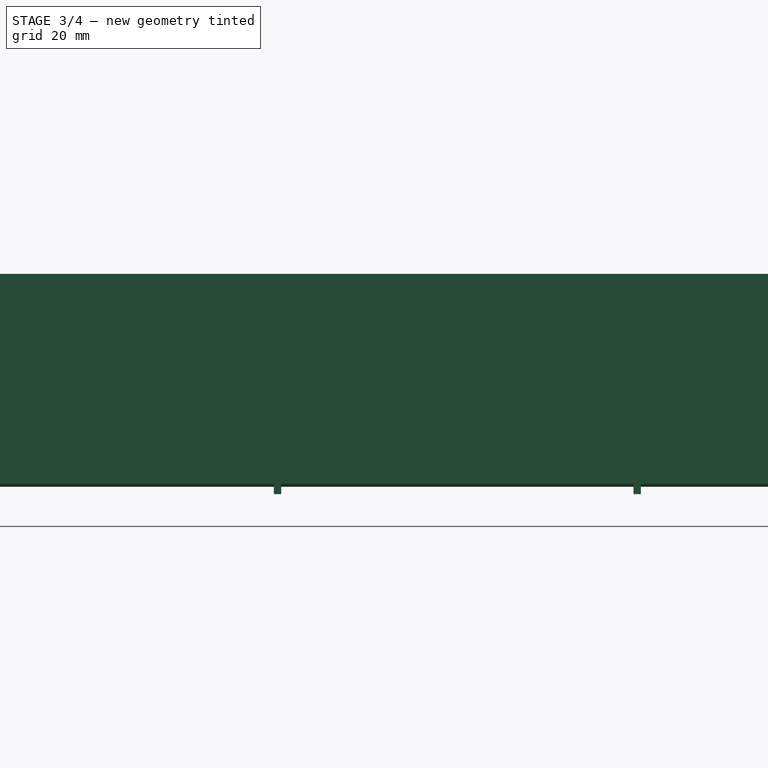
[diagram: stage 3 of 4 — right view after this stage's code; geometry added in this stage tinted green]
FEATURE [PartDesign::Body] Body001  label="Top Mask"
  Group = -> [Binder002,Sketch003,Pad001]
  Origin = -> Origin004
  Tip = -> Pad001
FEATURE [PartDesign::SubShapeBinder] Binder003  label="Enclosure Front Face"
  BindCopyOnChange = 0
  BindMode = 0
  ClaimChildren = false
  Context = -> Model [Case.Body002.Binder003.]
  Fuse = false
  MakeFace = true
  OffsetFill = false
  OffsetIntersection = false
  OffsetJoinType = 0
  OffsetOpenResult = false
  PartialLoad = false
  Relative = true
  Support = -> [Body[Pocket001.Face9,Pocket001.Face8]]
  _Version = 2
FEATURE [Sketcher::SketchObject] Sketch004
  ExternalGeometry = -> [Binder003]
  FullyConstrained = true
  MapMode = 5
  Placement = pos=(0,0,0) rot=(1,0,0;1.5708rad)
  Support = -> [XZ_Plane005]
  sketch-geometry (6):
    g0: LineSegment StartX=-122.75 StartY=60 StartZ=0 EndX=-122.75 EndY=3 EndZ=0
    g1: LineSegment StartX=-121.75 StartY=2 StartZ=0 EndX=42.25 EndY=2 EndZ=0
    g2: LineSegment StartX=43.25 StartY=3 StartZ=0 EndX=43.25 EndY=60 EndZ=0
    g3: LineSegment StartX=43.25 StartY=60 StartZ=0 EndX=-122.75 EndY=60 EndZ=0
    g4: ArcOfCircle CenterX=42.25 CenterY=3 CenterZ=0 NormalX=0 NormalY=0 NormalZ=1 AngleXU=0 Radius=1 StartAngle=4.71239 EndAngle=6.28318
    g5: ArcOfCircle CenterX=-121.75 CenterY=3 CenterZ=0 NormalX=0 NormalY=0 NormalZ=1 AngleXU=0 Radius=1 StartAngle=3.1416 EndAngle=4.71239
  constraints (18):
    c: Vertical(g0)
    c: Horizontal(g1)
    c: PointOnObject(g2,g-3)
    c: Vertical(g2)
    c: Coincident(g3,g2)
    c: Coincident(g3,g0)
    c: Horizontal(g3)
    c: DistanceX(g-3,g0) = 2
    c: DistanceX(g2,g-3) = 2
    c: DistanceY(g-7,g1) = 2
    c: Coincident(g4,g-7)
    c: Coincident(g2,g4)
    c: Coincident(g4,g1)
    c: Coincident(g5,g-5)
    c: Coincident(g5,g0)
    c: Coincident(g5,g1)
    c: Vertical(g1,g-6)
    c: Vertical(g1,g4)
FEATURE [PartDesign::Pad] Pad002
  Direction = (0,-1,-2e-16)
  Length = 500
  Length2 = 10
  Midplane = true
  Placement = pos=(0,0,0) rot=(1,0,0;1.5708rad)
  Profile = -> Sketch004
  ReferenceAxis = -> Sketch004 [N_Axis]
  Type = 0
FEATURE [PartDesign::CoordinateSystem] LCS_Top
  AttacherType = Attacher::AttachEngine3D
  MapMode = 45
  Placement = pos=(-3.30473,-30,9.1) rot=(0.57735,0.57735,0.57735;4.18879rad)
  Support = -> [Cut]
FEATURE [Part::FeaturePython] AI_Hat_Standoff  # link proxy (typed FeaturePython)
  AttachedBy = #LCS_Origin
  AttachedTo = Parent Assembly#LCS_AI_HAT_Standoff
  AttachmentOffset = pos=(0,0,0) rot=(0,1,0;3.14159rad)
  LinkedObject = -> <external ../../../.cache/FreeCAD/Cache/FreeCAD_Doc_c0c36c2c-b7f5-4d59-8aca-841648cfa9bd_da39a3_40904>#Assembly
  Placement = pos=(-112,18.5,2) rot=(0,0,1;1.5708rad)
  SolverId = Asm4EE
  SourceObject = -> <external Board Standoff.FCStd>#Assembly
  Type = Asm4::VariantLink
  diameter = 6
  height = 12
  hole_diameter = 3
  expr: Placement = LCS_AI_HAT_Standoff.Placement * AttachmentOffset * varTmpDoc_9#LCS_Origin.Placement ^ -1
FEATURE [Part::FeaturePython] Board_Standoff_PI_FL001  # link proxy (typed FeaturePython)
  AttachedBy = #LCS_Top001
  AttachedTo = Parent Assembly#LCS_PI_FL_Standoff
  AttachmentOffset = pos=(0,0,0) rot=(0,0,-1;3.14159rad)
  LinkedObject = -> <external ../../../.cache/FreeCAD/Cache/FreeCAD_Doc_8f2ab52f-2f3f-4678-b50d-5c2d0dba2e65_da39a3_40904>#Assembly
  Placement = pos=(-39,-24.5,0.1) rot=(0,0,-1;4.71239rad)
  SolverId = Asm4EE
  SourceObject = -> <external Board Standoff.FCStd>#Assembly
  Type = Asm4::VariantLink
  diameter = 6
  height = 6
  hole_diameter = 3
  expr: Placement = LCS_PI_FL_Standoff.Placement * AttachmentOffset * varTmpDoc_10#LCS_Top001.Placement ^ -1
FEATURE [PartDesign::SubShapeBinder] Binder005  label="Anchor Holes"
  BindCopyOnChange = 0
  BindMode = 0
  ClaimChildren = false
  Context = -> Model [Binder005.]
  Fuse = false
  MakeFace = true
  OffsetFill = false
  OffsetIntersection = false
  OffsetJoinType = 0
  OffsetOpenResult = false
  PartialLoad = false
  Refine = true
  Relative = true
  Support = -> [Case[Cut001.Edge25,Cut001.Edge22,Cut001.Edge18]]
  _Version = 2
FEATURE [App::Link] Anchor_FL
  AttachedBy = #LCS_0
  AttachedTo = Parent Assembly#LCS_FL_Anchor
  AttachmentOffset = pos=(0,0,0) rot=(0,1,0;3.14159rad)
  LinkPlacement = pos=(-116.75,-23.9,2) rot=(0,0,1;1.5708rad)
  LinkedObject = -> <external Nut Anchor.FCStd>#Body
  Placement = pos=(-116.75,-23.9,2) rot=(0,0,1;1.5708rad)
  SolverId = Asm4EE
  expr: Placement = LCS_FL_Anchor.Placement * AttachmentOffset * Nut_Anchor#LCS_0.Placement ^ -1
FEATURE [App::Link] Anchor_RL
  AttachedBy = #LCS_0
  AttachedTo = Parent Assembly#LCS_RL_Anchor
  AttachmentOffset = pos=(0,0,0) rot=(1,0,0;3.14159rad)
  LinkPlacement = pos=(-116.75,63.9,2) rot=(0,0,1;4.71239rad)
  LinkedObject = -> <external Nut Anchor.FCStd>#Body
  Placement = pos=(-116.75,63.9,2) rot=(0,0,1;4.71239rad)
  SolverId = Asm4EE
  expr: Placement = LCS_RL_Anchor.Placement * AttachmentOffset * Nut_Anchor#LCS_0.Placement ^ -1
FEATURE [App::Link] Anchor_RR
  AttachedBy = #LCS_0
  AttachedTo = Parent Assembly#LCS_RR_Anchor
  AttachmentOffset = pos=(0,0,0) rot=(1,0,0;3.14159rad)
  LinkPlacement = pos=(37.25,63.9,2) rot=(0,0,1;4.71239rad)
  LinkedObject = -> <external Nut Anchor.FCStd>#Body
  Placement = pos=(37.25,63.9,2) rot=(0,0,1;4.71239rad)
  SolverId = Asm4EE
  expr: Placement = LCS_RR_Anchor.Placement * AttachmentOffset * Nut_Anchor#LCS_0.Placement ^ -1
FEATURE [Spreadsheet::Sheet] top_printing
  cells = A1=Asm4::ConfigurationTable; A2=0; A4=ObjectName; B4=Visible; C4=Assembly Type; D4=Pos. X; E4=Pos. Y; F4=Pos. Z; G4=Rot. Yaw; H4=Rot. Pitch; I4=Rot. Roll; A5(ModelLCDLCD_1_28inch_Top)=Model.LCD.LCD_1_28inch_Top; B5=False; C5=Asm4EE; D5=0; E5=0; F5=6; G5=0; H5=0; I5=0; A6(ModelAnchor_RR)=Model.Anchor_RR; B6=False; C6=Asm4EE; D6=0; E6=0; F6=0; G6=-90.00000000000001; H6=-0; I6=0; A7(ModelAnchor_RL)=Model.Anchor_RL; B7=False; C7=Asm4EE; D7=0; E7=0; F7=0; G7=-90.00000000000001; H7=-0; I7=0; A8(ModelAnchor_FL)=Model.Anchor_FL; B8=False; C8=Asm4EE; D8=0; E8=0; F8=0; G8=89.99999999999999; H8=0; I8=0; A9(ModelLCS_RR_Anchor)=Model.LCS_RR_Anchor; B9=False; C9=Attacher; A10(ModelLCS_RL_Anchor)=Model.LCS_RL_Anchor; B10=False; C10=Attacher; A11(ModelLCS_FL_Anchor)=Model.LCS_FL_Anchor; B11=False; C11=Attacher; A12(ModelBinder005)=Model.Binder005; B12=False; C12=Manual; D12=0; E12=0; F12=0; G12=0; H12=0; I12=0; A13(ModelBoard_Standoff_PI_FL001)=Model.Board_Standoff_PI_FL001; B13=True; C13=Asm4EE; D13=0; E13=0; F13=0; G13=-180; H13=-0; I13=0; A14(ModelBoard_Standoff_PI_FL001Body)=Model.Board_Standoff_PI_FL001.Body; B14=True; C14=Manual; D14=0; E14=0; F14=0; G14=0; H14=0; I14=0; A15(ModelBoard_Standoff_PI_FL001LCS_Top001)=Model.Board_Standoff_PI_FL001.LCS_Top001; B15=True; C15=Attacher; A16(ModelBoard_Standoff_PI_FL001LCS_Origin)=Model.Board_Standoff_PI_FL001.LCS_Origin; B16=True; C16=Attacher; A17(ModelAI_Hat_Standoff)=Model.AI_Hat_Standoff; B17=True; C17=Asm4EE; D17=0; E17=0; F17=0; G17=180; H17=7.016709298534876e-15; I17=180; A18(ModelAI_Hat_StandoffBody)=Model.AI_Hat_Standoff.Body; B18=True; C18=Manual; D18=0; E18=0; F18=0; G18=0; H18=0; I18=0; A19(ModelAI_Hat_StandoffLCS_Top001)=Model.AI_Hat_Standoff.LCS_Top001; B19=True; C19=Attacher; A20(ModelAI_Hat_StandoffLCS_Origin)=Model.AI_Hat_Standoff.LCS_Origin; B20=True; C20=Attacher; A21(ModelLCS_AI_HAT_Standoff)=Model.LCS_AI_HAT_Standoff; B21=True; C21=Attacher; A22(Model__Case__Cut001_Edge20)=Model.__Case__Cut001_Edge20; B22=True; C22=Manual; D22=0; E22=0; F22=0; G22=0; H22=0; I22=0; A23(ModelBoard_Standoff_PI_RR)=Model.Board_Standoff_PI_RR; B23=True; C23=Asm4EE; D23=0; E23=0; F23=0; G23=0; H23=0; I23=0; A24(ModelBoard_Standoff_PI_RRBody)=Model.Board_Standoff_PI_RR.Body; B24=True; C24=Manual; D24=0; E24=0; F24=0; G24=0; H24=0; I24=0; A25(ModelBoard_Standoff_PI_RRLCS_Top001)=Model.Board_Standoff_PI_RR.LCS_Top001; B25=True; C25=Attacher; A26(ModelBoard_Standoff_PI_RRLCS_Origin)=Model.Board_Standoff_PI_RR.LCS_Origin; B26=True; C26=Attacher; A27(ModelBoard_Standoff_PI_RL)=Model.Board_Standoff_PI_RL; B27=True; C27=Asm4EE; D27=0; E27=0; F27=0; G27=0; H27=0; I27=0; A28(ModelBoard_Standoff_PI_RLBody)=Model.Board_Standoff_PI_RL.Body; B28=True; C28=Manual; D28=0; E28=0; F28=0; G28=0; H28=0; I28=0; A29(ModelBoard_Standoff_PI_RLLCS_Top001)=Model.Board_Standoff_PI_RL.LCS_Top001; B29=True; C29=Attacher; A30(ModelBoard_Standoff_PI_RLLCS_Origin)=Model.Board_Standoff_PI_RL.LCS_Origin; B30=True; C30=Attacher; A31(ModelBoard_Standoff_PI_FR)=Model.Board_Standoff_PI_FR; B31=True; C31=Asm4EE; D31=0; E31=0; F31=0; G31=0; H31=0; I31=0; A32(ModelBoard_Standoff_PI_FRBody)=Model.Board_Standoff_PI_FR.Body; B32=True; C32=Manual; D32=0; E32=0; F32=0; G32=0; H32=0; I32=0; A33(ModelBoard_Standoff_PI_FRLCS_Top001)=Model.Board_Standoff_PI_FR.LCS_Top001; B33=True; C33=Attacher; A34(ModelBoard_Standoff_PI_FRLCS_Origin)=Model.Board_Standoff_PI_FR.LCS_Origin; B34=True; C34=Attacher; A35(ModelBinder004)=Model.Binder004; B35=False; C35=Manual; +258 more cells
FEATURE [Spreadsheet::Sheet] bottom_printing
  cells = A1=Asm4::ConfigurationTable; A2=0; A4=ObjectName; B4=Visible; C4=Assembly Type; D4=Pos. X; E4=Pos. Y; F4=Pos. Z; G4=Rot. Yaw; H4=Rot. Pitch; I4=Rot. Roll; A5(ModelAnchor_RR)=Model.Anchor_RR; B5=False; C5=Asm4EE; D5=0; E5=0; F5=0; G5=-90.00000000000001; H5=-0; I5=0; A6(ModelAnchor_RL)=Model.Anchor_RL; B6=False; C6=Asm4EE; D6=0; E6=0; F6=0; G6=-90.00000000000001; H6=-0; I6=0; A7(ModelAnchor_FL)=Model.Anchor_FL; B7=False; C7=Asm4EE; D7=0; E7=0; F7=0; G7=89.99999999999999; H7=0; I7=0; A8(ModelLCS_RR_Anchor)=Model.LCS_RR_Anchor; B8=False; C8=Attacher; A9(ModelLCS_RL_Anchor)=Model.LCS_RL_Anchor; B9=False; C9=Attacher; A10(ModelLCS_FL_Anchor)=Model.LCS_FL_Anchor; B10=False; C10=Attacher; A11(ModelBinder005)=Model.Binder005; B11=False; C11=Manual; D11=0; E11=0; F11=0; G11=0; H11=0; I11=0; A12(ModelBoard_Standoff_PI_FL001)=Model.Board_Standoff_PI_FL001; B12=True; C12=Asm4EE; D12=0; E12=0; F12=0; G12=-180; H12=-0; I12=0; A13(ModelBoard_Standoff_PI_FL001Body)=Model.Board_Standoff_PI_FL001.Body; B13=True; C13=Manual; D13=0; E13=0; F13=0; G13=0; H13=0; I13=0; A14(ModelBoard_Standoff_PI_FL001LCS_Top001)=Model.Board_Standoff_PI_FL001.LCS_Top001; B14=True; C14=Attacher; A15(ModelBoard_Standoff_PI_FL001LCS_Origin)=Model.Board_Standoff_PI_FL001.LCS_Origin; B15=True; C15=Attacher; A16(ModelAI_Hat_Standoff)=Model.AI_Hat_Standoff; B16=True; C16=Asm4EE; D16=0; E16=0; F16=0; G16=180; H16=7.016709298534876e-15; I16=180; A17(ModelAI_Hat_StandoffBody)=Model.AI_Hat_Standoff.Body; B17=True; C17=Manual; D17=0; E17=0; F17=0; G17=0; H17=0; I17=0; A18(ModelAI_Hat_StandoffLCS_Top001)=Model.AI_Hat_Standoff.LCS_Top001; B18=True; C18=Attacher; A19(ModelAI_Hat_StandoffLCS_Origin)=Model.AI_Hat_Standoff.LCS_Origin; B19=True; C19=Attacher; A20(ModelLCS_AI_HAT_Standoff)=Model.LCS_AI_HAT_Standoff; B20=True; C20=Attacher; A21(Model__Case__Cut001_Edge20)=Model.__Case__Cut001_Edge20; B21=True; C21=Manual; D21=0; E21=0; F21=0; G21=0; H21=0; I21=0; A22(ModelBoard_Standoff_PI_RR)=Model.Board_Standoff_PI_RR; B22=True; C22=Asm4EE; D22=0; E22=0; F22=0; G22=0; H22=0; I22=0; A23(ModelBoard_Standoff_PI_RRBody)=Model.Board_Standoff_PI_RR.Body; B23=True; C23=Manual; D23=0; E23=0; F23=0; G23=0; H23=0; I23=0; A24(ModelBoard_Standoff_PI_RRLCS_Top001)=Model.Board_Standoff_PI_RR.LCS_Top001; B24=True; C24=Attacher; A25(ModelBoard_Standoff_PI_RRLCS_Origin)=Model.Board_Standoff_PI_RR.LCS_Origin; B25=True; C25=Attacher; A26(ModelBoard_Standoff_PI_RL)=Model.Board_Standoff_PI_RL; B26=True; C26=Asm4EE; D26=0; E26=0; F26=0; G26=0; H26=0; I26=0; A27(ModelBoard_Standoff_PI_RLBody)=Model.Board_Standoff_PI_RL.Body; B27=True; C27=Manual; D27=0; E27=0; F27=0; G27=0; H27=0; I27=0; A28(ModelBoard_Standoff_PI_RLLCS_Top001)=Model.Board_Standoff_PI_RL.LCS_Top001; B28=True; C28=Attacher; A29(ModelBoard_Standoff_PI_RLLCS_Origin)=Model.Board_Standoff_PI_RL.LCS_Origin; B29=True; C29=Attacher; A30(ModelBoard_Standoff_PI_FR)=Model.Board_Standoff_PI_FR; B30=True; C30=Asm4EE; D30=0; E30=0; F30=0; G30=0; H30=0; I30=0; A31(ModelBoard_Standoff_PI_FRBody)=Model.Board_Standoff_PI_FR.Body; B31=True; C31=Manual; D31=0; E31=0; F31=0; G31=0; H31=0; I31=0; A32(ModelBoard_Standoff_PI_FRLCS_Top001)=Model.Board_Standoff_PI_FR.LCS_Top001; B32=True; C32=Attacher; A33(ModelBoard_Standoff_PI_FRLCS_Origin)=Model.Board_Standoff_PI_FR.LCS_Origin; B33=True; C33=Attacher; A34(ModelBinder004)=Model.Binder004; B34=False; C34=Manual; D34=0; E34=0; F34=0; G34=0; H34=0; I34=0; A35(ModelLCS_PI_FL_Standoff)=Model.LCS_PI_FL_Standoff; B35=False; C35=Attacher; +249 more cells
FEATURE [App::DocumentObjectGroup] Configurations
  Group = -> [top_printing,bottom_printing]
FEATURE [PartDesign::CoordinateSystem] Case_LCS_Top
  AttachedBy = Origin
  AttacherType = Attacher::AttachEngine3D
  Placement = pos=(-3.30473,-30,9.1) rot=(0.57735,0.57735,0.57735;4.18879rad)
  SolverId = Asm4EE
  expr: Placement = Case.Placement * LCS_Top.Placement
FEATURE [Sketcher::SketchObject] Sketch008
  FullyConstrained = true
  MapMode = 5
  Placement = pos=(0,0,0) rot=(0.57735,0.57735,0.57735;2.0944rad)
  Support = -> [YZ_Plane005]
  expr: Constraints[16] = Variables.thickness
  expr: Constraints[18] = Variables.thickness
  expr: Constraints[19] = Variables.height
  expr: Constraints[20] = Variables.width
  sketch-geometry (8):
    g0: LineSegment StartX=-30 StartY=60 StartZ=0 EndX=-30 EndY=0 EndZ=0
    g1: LineSegment StartX=-30 StartY=0 StartZ=0 EndX=-28 EndY=0 EndZ=0
    g2: LineSegment StartX=-28 StartY=0 StartZ=0 EndX=-28 EndY=58 EndZ=0
    g3: LineSegment StartX=-28 StartY=58 StartZ=0 EndX=68 EndY=58 EndZ=0
    g4: LineSegment StartX=68 StartY=58 StartZ=0 EndX=68 EndY=0 EndZ=0
    g5: LineSegment StartX=68 StartY=0 StartZ=0 EndX=70 EndY=0 EndZ=0
    g6: LineSegment StartX=70 StartY=0 StartZ=0 EndX=70 EndY=60 EndZ=0
    g7: LineSegment StartX=70 StartY=60 StartZ=0 EndX=-30 EndY=60 EndZ=0
  constraints (24):
    c: PointOnObject(g0,g-1)
    c: Vertical(g0)
    c: Coincident(g1,g0)
    c: Coincident(g2,g1)
    c: Vertical(g2)
    c: Coincident(g3,g2)
    c: Horizontal(g3)
    c: Coincident(g4,g3)
    c: PointOnObject(g4,g-1)
    c: Vertical(g4)
    c: Coincident(g5,g4)
    c: Coincident(g6,g5)
    c: Vertical(g6)
    c: Coincident(g7,g6)
    c: Coincident(g7,g0)
    c: Horizontal(g7)
    c: DistanceX(g0,g1) = 2
    c: Equal(g5,g1)
    c: DistanceY(g2,g0) = 2
    c: DistanceY(g0,g0) = 60
    c: DistanceX(g0,g6) = 100
    c: DistanceX(g0,g-1) = 30
    c: Horizontal(g1)
    c: Horizontal(g5)
FEATURE [PartDesign::Pad] Pad003
  BaseFeature = -> Pad002
  Direction = (1,-2e-16,3e-16)
  Length = 300
  Length2 = 10
  Midplane = true
  Placement = pos=(0,0,0) rot=(1,0,0;1.5708rad)
  Profile = -> Sketch008
  ReferenceAxis = -> Sketch008 [N_Axis]
  Refine = true
  Type = 0
  expr: Length = 300
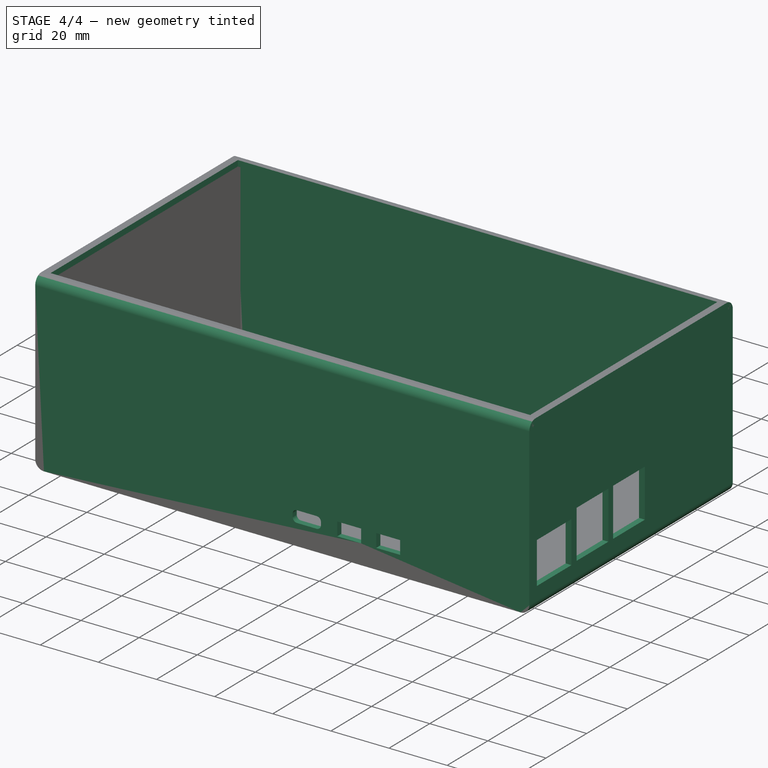
[diagram: stage 4 of 4 — iso view after this stage's code; geometry added in this stage tinted green]
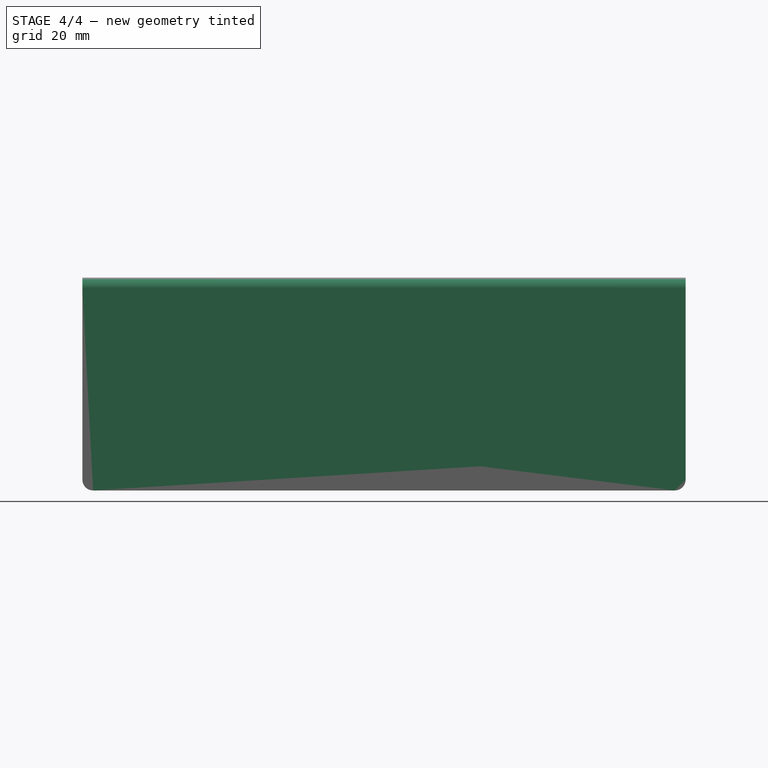
[diagram: stage 4 of 4 — front view after this stage's code; geometry added in this stage tinted green]
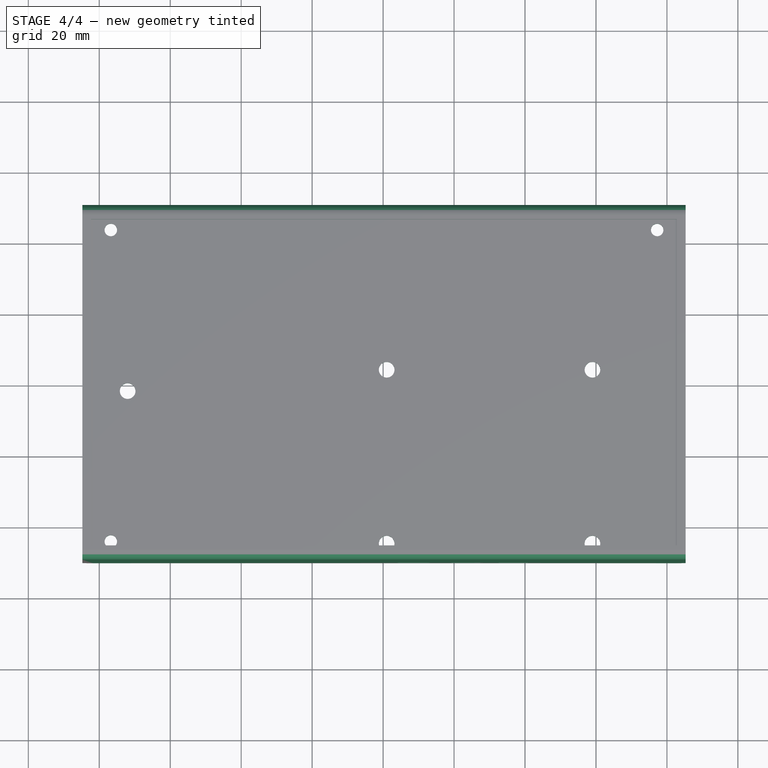
[diagram: stage 4 of 4 — top view after this stage's code; geometry added in this stage tinted green]
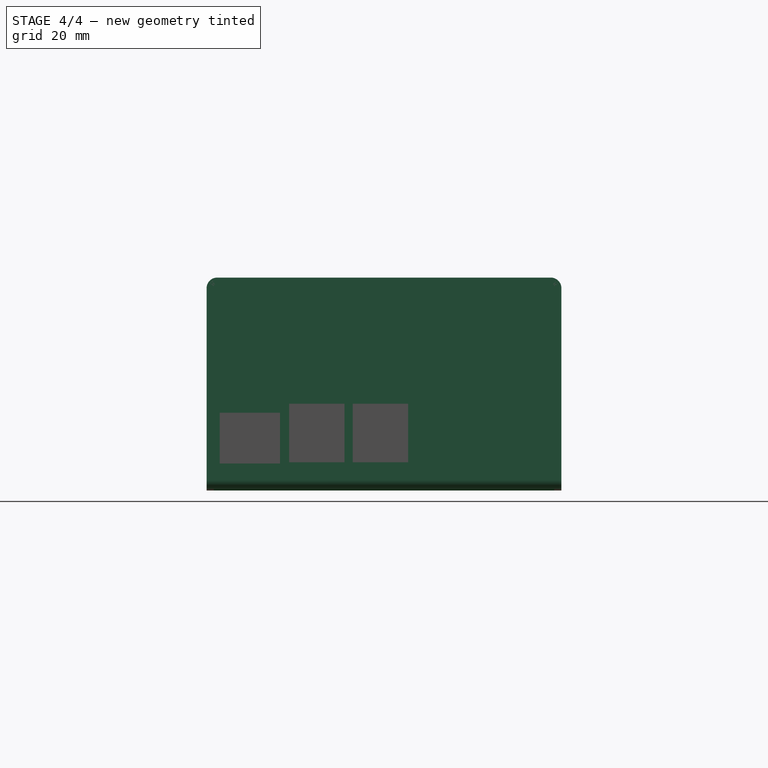
[diagram: stage 4 of 4 — right view after this stage's code; geometry added in this stage tinted green]
FEATURE [PartDesign::SubShapeBinder] Binder002  label="Enclosure Right Face"
  BindCopyOnChange = 0
  BindMode = 0
  ClaimChildren = false
  Context = -> Model [Case.Body001.Binder002.]
  Fuse = false
  MakeFace = true
  OffsetFill = false
  OffsetIntersection = false
  OffsetJoinType = 0
  OffsetOpenResult = false
  PartialLoad = false
  Relative = true
  Support = -> [Body[Pocket001.Face6,Pocket001.Face7]]
  _Version = 2
FEATURE [Sketcher::SketchObject] Sketch003
  ExternalGeometry = -> [Binder002]
  FullyConstrained = true
  MapMode = 5
  Placement = pos=(0,0,0) rot=(0.57735,0.57735,0.57735;2.0944rad)
  Support = -> [YZ_Plane004]
  sketch-geometry (6):
    g0: LineSegment StartX=-28 StartY=0 StartZ=0 EndX=-28 EndY=57 EndZ=0
    g1: LineSegment StartX=-28 StartY=0 StartZ=0 EndX=68 EndY=0 EndZ=0
    g2: LineSegment StartX=68 StartY=0 StartZ=0 EndX=68 EndY=57 EndZ=0
    g3: LineSegment StartX=-27 StartY=58 StartZ=0 EndX=67 EndY=58 EndZ=0
    g4: ArcOfCircle CenterX=-27 CenterY=57 CenterZ=0 NormalX=0 NormalY=0 NormalZ=1 AngleXU=0 Radius=1 StartAngle=1.5708 EndAngle=3.1416
    g5: ArcOfCircle CenterX=67 CenterY=57 CenterZ=0 NormalX=0 NormalY=0 NormalZ=1 AngleXU=0 Radius=1 StartAngle=6.28318 EndAngle=7.85398
  constraints (18):
    c: PointOnObject(g0,g-1)
    c: Vertical(g0)
    c: Coincident(g1,g0)
    c: PointOnObject(g1,g-1)
    c: Coincident(g2,g1)
    c: Vertical(g2)
    c: Horizontal(g3)
    c: Coincident(g4,g-4)
    c: Vertical(g-4,g4)
    c: DistanceY(g4,g-4) = 2
    c: Coincident(g4,g0)
    c: DistanceX(g-6,g0) = 2
    c: Coincident(g3,g4)
    c: Coincident(g5,g-9)
    c: Vertical(g-9,g5)
    c: Coincident(g3,g5)
    c: Coincident(g5,g2)
    c: DistanceX(g1,g-7) = 2
FEATURE [PartDesign::Pad] Pad001
  Direction = (1,-2e-16,3e-16)
  Length = 500
  Length2 = 10
  Midplane = true
  Placement = pos=(0,0,0) rot=(0.57735,0.57735,0.57735;2.0944rad)
  Profile = -> Sketch003
  ReferenceAxis = -> Sketch003 [N_Axis]
  Type = 0
FEATURE [PartDesign::Body] Body  label="Enclosure"
  Group = -> [Binder,Sketch,Pad,Fillet,Binder001,Sketch001,Pocket,Sketch002,Pocket001,Sketch006,Pocket003,Sketch007,Pocket004]
  Origin = -> Origin003
  Tip = -> Pocket004
FEATURE [Part::Cut] Cut  label="Top"
  Base = -> Body
  Tool = -> Body001
FEATURE [PartDesign::Body] Body002  label="Bottom Mask"
  Group = -> [Binder003,Sketch004,Pad002,Sketch008,Pad003]
  Origin = -> Origin005
  Tip = -> Pad003
FEATURE [Part::Cut] Cut001  label="Bottom"
  Base = -> Body
  Tool = -> Body002
FEATURE [App::Part] Case
  Group = -> [LCS_0,RP_004882_DD___Pi_5_Mechanical_Reference_3D_model_Iss1,Body,Body001,Cut,Body002,Cut001,LCS_Top]
  Origin = -> Origin001
FEATURE [PartDesign::CoordinateSystem] LCS_AI_HAT_Standoff
  AttacherType = Attacher::AttachEngine3D
  MapMode = 11
  Placement = pos=(-112,18.5,2) rot=(0.707107,-0.707107,0;3.14159rad)
  Support = -> [Cut001]
FEATURE [PartDesign::CoordinateSystem] LCS_FL_Anchor
  AttacherType = Attacher::AttachEngine3D
  MapMode = 11
  Placement = pos=(-116.75,-23.9,2) rot=(0.707107,-0.707107,0;3.14159rad)
  Support = -> [Cut001]
FEATURE [PartDesign::CoordinateSystem] LCS_RL_Anchor
  AttacherType = Attacher::AttachEngine3D
  MapMode = 11
  Placement = pos=(-116.75,63.9,2) rot=(0.707107,-0.707107,0;3.14159rad)
  Support = -> [Cut001]
FEATURE [PartDesign::CoordinateSystem] LCS_RR_Anchor
  AttacherType = Attacher::AttachEngine3D
  MapMode = 11
  Placement = pos=(37.25,63.9,2) rot=(0.707107,-0.707107,0;3.14159rad)
  Support = -> [Cut001]
FEATURE [App::Part] Model
  AssemblyType = Part::Link
  Group = -> [LCS_Origin,Constraints,Variables,Configurations,Case,Top_Controls,Board_Standoff_PI_FL,LCS_PI_RR_Standoff,LCS_PI_RL_Standoff,LCS_PI_FR_Standoff,LCS_PI_FL_Standoff,Binder004,Board_Standoff_PI_FR,Board_Standoff_PI_RL,Board_Standoff_PI_RR,LCS_AI_HAT_Standoff,AI_Hat_Standoff,Board_Standoff_PI_FL001,Binder005,LCS_FL_Anchor,LCS_RL_Anchor,LCS_RR_Anchor,Anchor_FL,Anchor_RL,Anchor_RR,top_printing,+2 more]
  Origin = -> Origin
  Type = Assembly
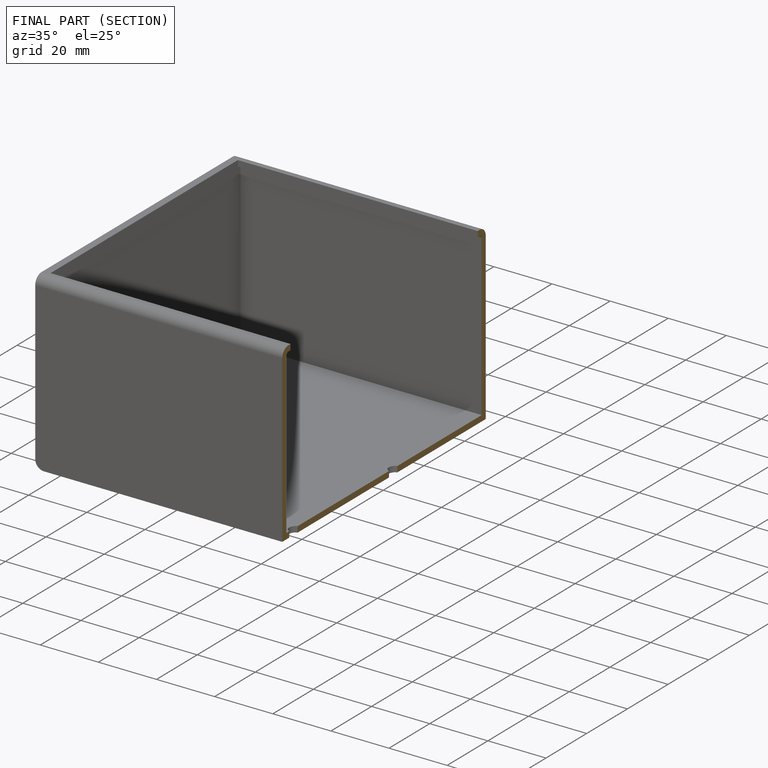
[diagram: finished part — half-section view (interior)]
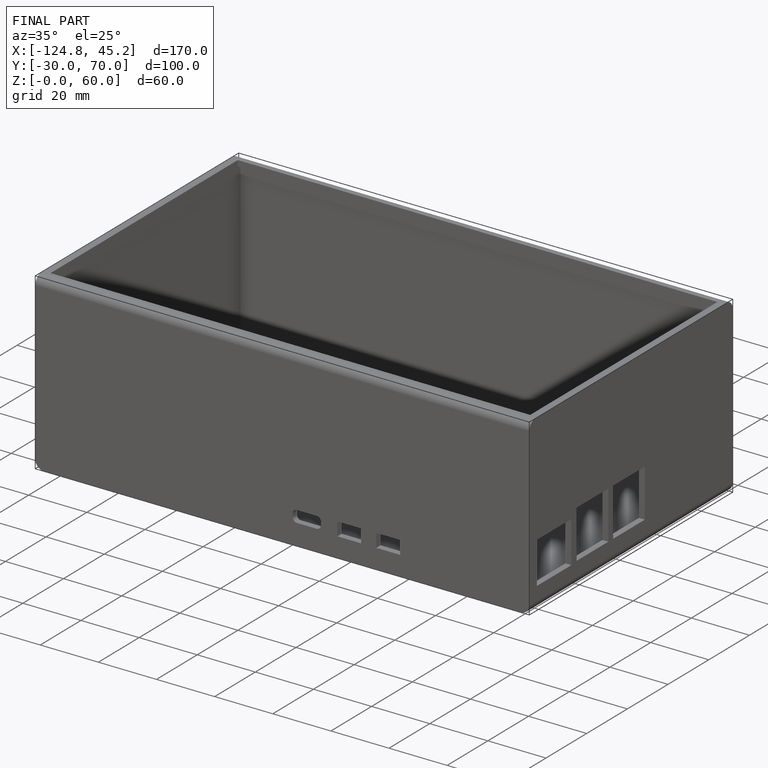
[diagram: finished part — iso view with bounding-box wireframe]
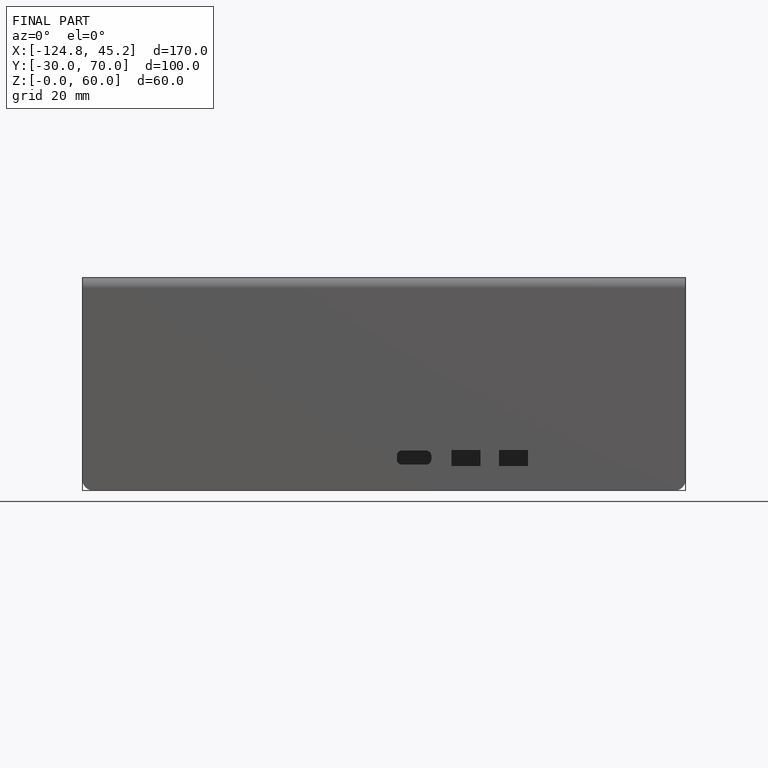
[diagram: finished part — front view with bounding-box wireframe]
